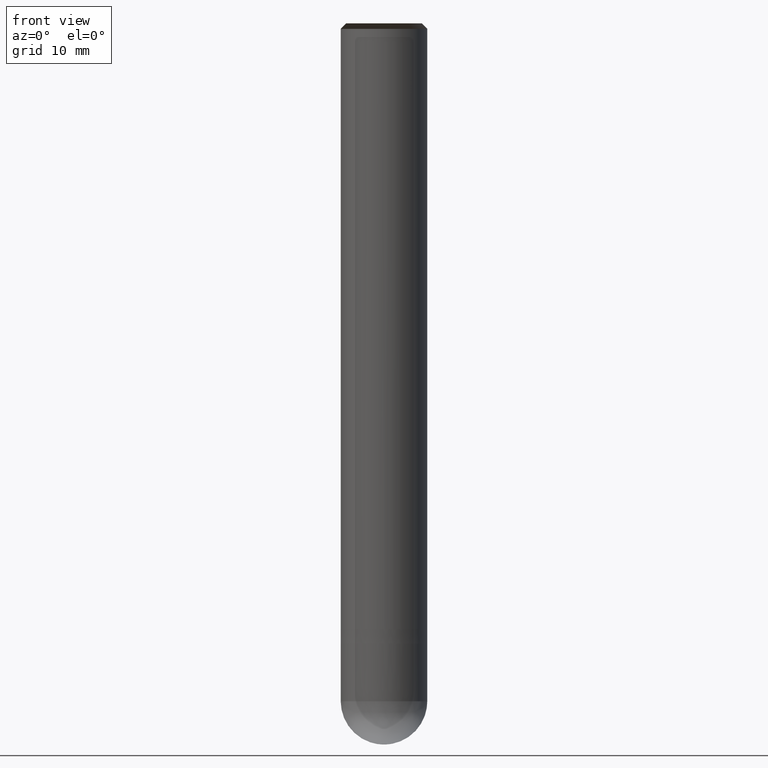
[diagram: clean part render]
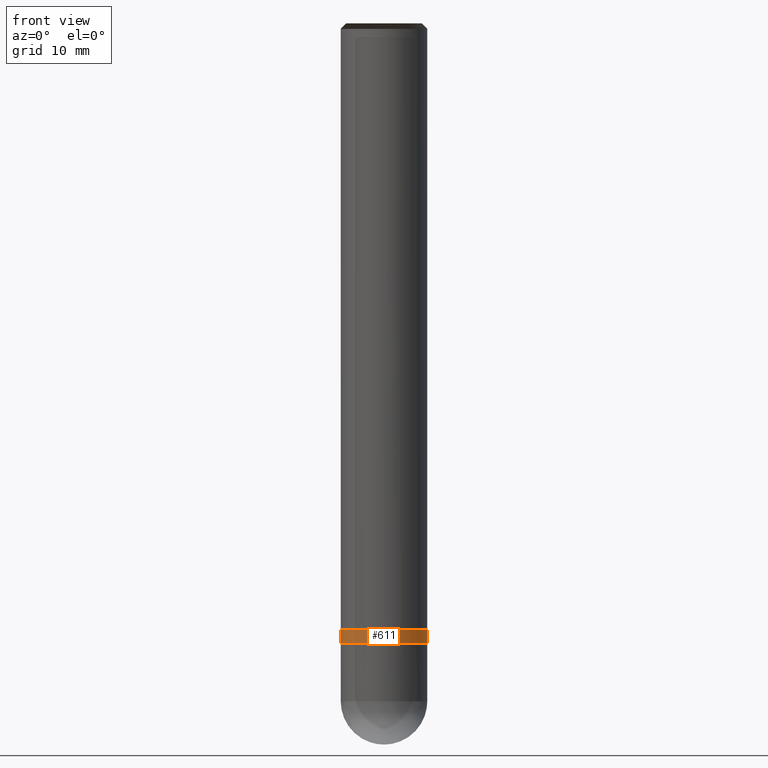
[diagram: same view with one face highlighted and labeled with its STEP entity id]
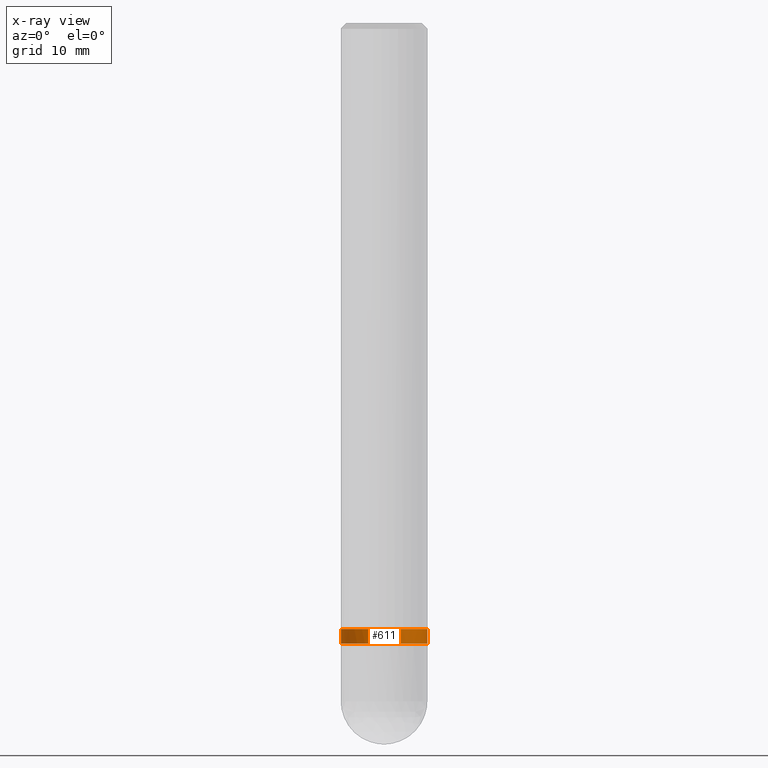
[diagram: x-ray of the same camera — body ghosted, the highlighted face saturated]
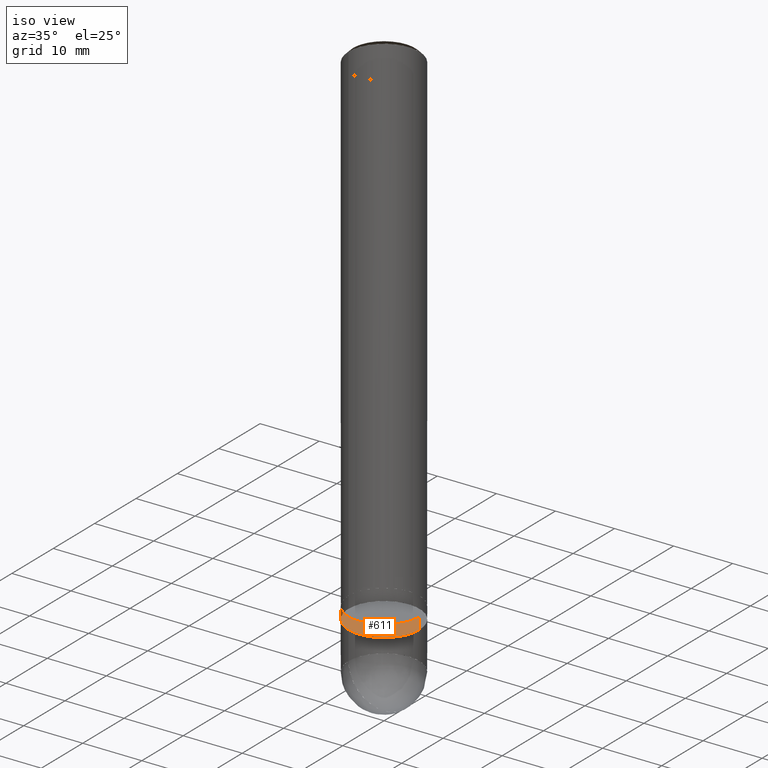
[diagram: same view with one face highlighted and labeled with its STEP entity id]
A machine part, front view. The second image highlights one B-rep face of the part: STEP entity #611.
The next image is the same camera in x-ray: the body ghosted, the highlighted face saturated — about 0% of this face is hidden behind the body in this view.
A second angle (iso view) of the same face is appended — the face is thin or edge-on in the first view.
In plain terms, the highlighted face is a freeform B-spline surface patch.
Its self-contained STEP definition (entity closure, byte-faithful):
#331=CARTESIAN_POINT('',(6.0,0.0,-2.0));
#335=CARTESIAN_POINT('',(-6.0,0.0,-2.0));
#343=CARTESIAN_POINT('',(-6.0,-6.0,-2.0));
#344=CARTESIAN_POINT('',(0.0,-6.0,-2.0));
#345=CARTESIAN_POINT('',(6.0,-6.0,-2.0));
#346=CARTESIAN_POINT('',(6.0,0.0,0.0));
#350=CARTESIAN_POINT('',(-6.0,0.0,0.0));
#362=CARTESIAN_POINT('',(-6.0,-6.0,0.0));
#363=CARTESIAN_POINT('',(0.0,-6.0,0.0));
#364=CARTESIAN_POINT('',(6.0,-6.0,0.0));
#592=(
BOUNDED_SURFACE()
B_SPLINE_SURFACE(1,2,(
(#335,#343,#344,#345,#331),
(#350,#362,#363,#364,#346)
), .UNSPECIFIED.,.F.,.F.,.F.)
B_SPLINE_SURFACE_WITH_KNOTS((2,2),(3,2,3),(
0.0,1.0),(
0.0,0.5,1.0), .UNSPECIFIED.)
GEOMETRIC_REPRESENTATION_ITEM()
RATIONAL_B_SPLINE_SURFACE(((1.0,0.707106781187,1.0,0.707106781187,1.0),
(1.0,0.707106781187,1.0,0.707106781187,1.0)
))
REPRESENTATION_ITEM('')
SURFACE()
);
#593=(
BOUNDED_CURVE()
B_SPLINE_CURVE(2,(#331,#345,#344,#343,#335),.UNSPECIFIED.,.F.,.F.)
B_SPLINE_CURVE_WITH_KNOTS((3,2,3),
(0.0,0.5,1.0),.UNSPECIFIED.)
CURVE()
GEOMETRIC_REPRESENTATION_ITEM()
RATIONAL_B_SPLINE_CURVE((1.0,0.707106781187,1.0,0.707106781187,1.0))
REPRESENTATION_ITEM('')
);
#594=(
BOUNDED_CURVE()
B_SPLINE_CURVE(1,(#335,#350),.UNSPECIFIED.,.F.,.F.)
B_SPLINE_CURVE_WITH_KNOTS((2,2),
(0.0,1.0),.UNSPECIFIED.)
CURVE()
GEOMETRIC_REPRESENTATION_ITEM()
RATIONAL_B_SPLINE_CURVE((1.0,1.0))
REPRESENTATION_ITEM('')
);
#595=(
BOUNDED_CURVE()
B_SPLINE_CURVE(2,(#350,#362,#363,#364,#346),.UNSPECIFIED.,.F.,.F.)
B_SPLINE_CURVE_WITH_KNOTS((3,2,3),
(0.0,0.5,1.0),.UNSPECIFIED.)
CURVE()
GEOMETRIC_REPRESENTATION_ITEM()
RATIONAL_B_SPLINE_CURVE((1.0,0.707106781187,1.0,0.707106781187,1.0))
REPRESENTATION_ITEM('')
);
#596=(
BOUNDED_CURVE()
B_SPLINE_CURVE(1,(#346,#331),.UNSPECIFIED.,.F.,.F.)
B_SPLINE_CURVE_WITH_KNOTS((2,2),
(0.0,1.0),.UNSPECIFIED.)
CURVE()
GEOMETRIC_REPRESENTATION_ITEM()
RATIONAL_B_SPLINE_CURVE((1.0,1.0))
REPRESENTATION_ITEM('')
);
#597=VERTEX_POINT('',#331);
#598=VERTEX_POINT('',#335);
#599=VERTEX_POINT('',#346);
#600=VERTEX_POINT('',#350);
#601=EDGE_CURVE('',#597,#598,#593,.T.);
#602=EDGE_CURVE('',#598,#600,#594,.T.);
#603=EDGE_CURVE('',#600,#599,#595,.T.);
#604=EDGE_CURVE('',#599,#597,#596,.T.);
#605=ORIENTED_EDGE('',*,*,#601,.T.);
#606=ORIENTED_EDGE('',*,*,#602,.T.);
#607=ORIENTED_EDGE('',*,*,#603,.T.);
#608=ORIENTED_EDGE('',*,*,#604,.T.);
#609=EDGE_LOOP('',(#605,#606,#607,#608));
#610=FACE_OUTER_BOUND('',#609,.T.);
#611=ADVANCED_FACE('',(#610),#592,.T.);